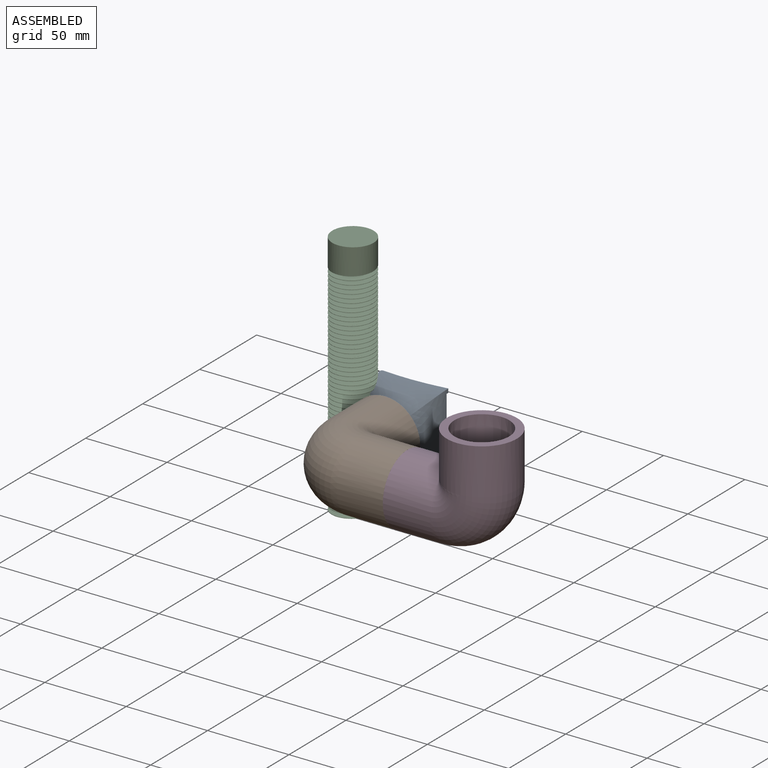
[diagram: assembled view]
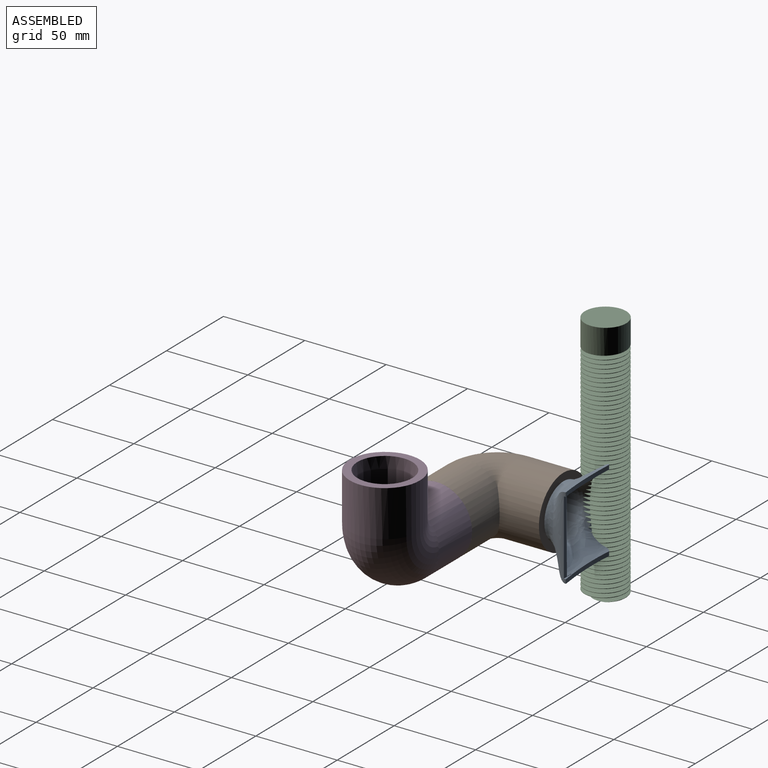
[diagram: assembled view, second angle]
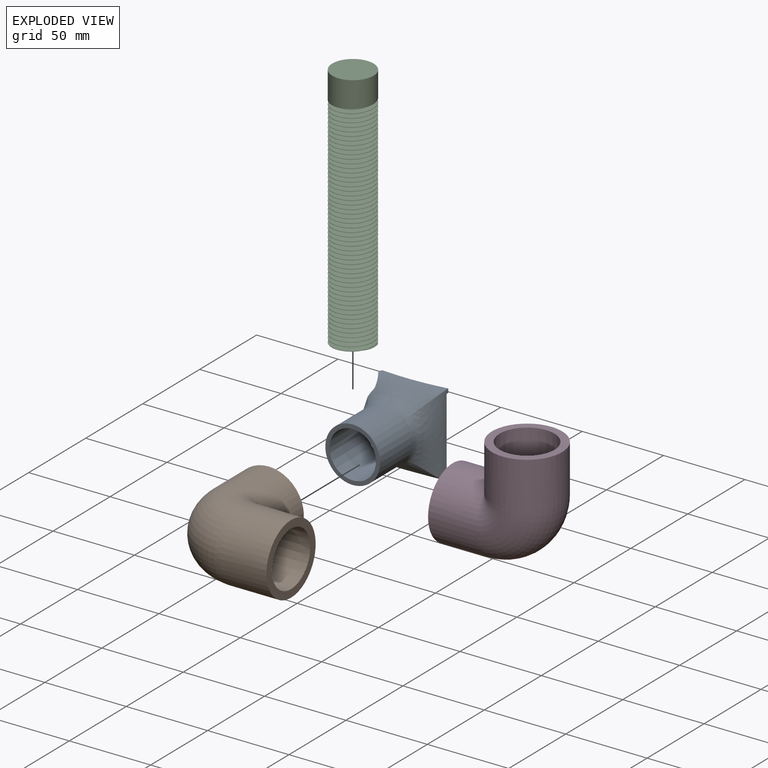
[diagram: exploded view]
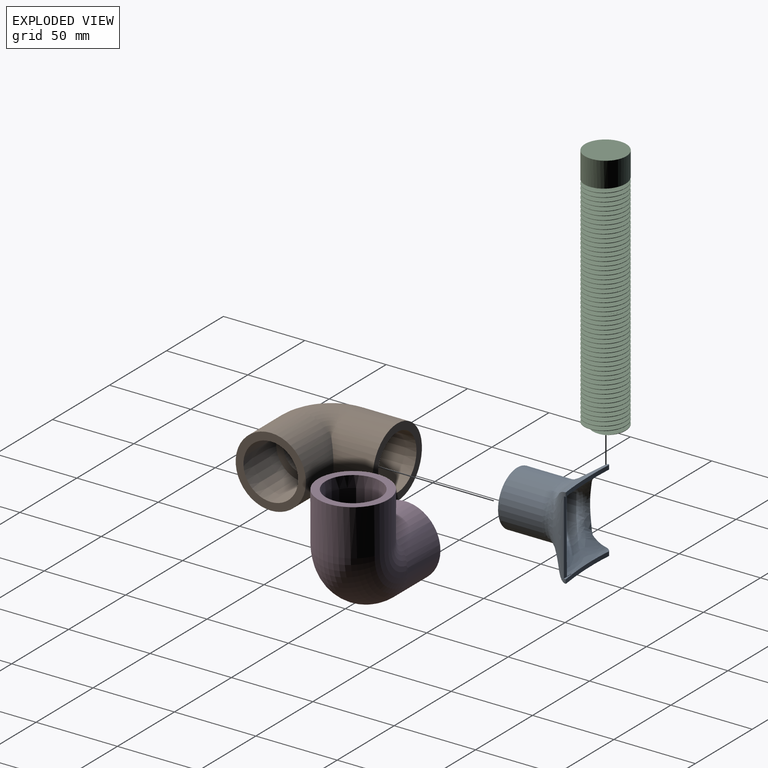
[diagram: exploded view, second angle]
ASSEMBLY  parts=4 mates=3
PART A: 29 faces, bbox 55.9x55.9x52.7 mm
  f0: bspline ~50.8x19.05mm, area 804.4mm2, adj f3,f4,f7,f8,f15,f24,f25,f28
  f1: offset ~55.88x24.13mm, area 611.2mm2, adj f3,f6,f9,f12,f19,f20,f22,f24
  f2: offset ~55.88x24.13mm, area 611.2mm2, adj f4,f6,f9,f10,f20,f21,f23,f24
  f3: cylinder r=198.48mm len=39.11mm, axis (0,-1,0), area 101.5mm2, adj f0,f1,f7,f22,f25,f27
  f4: cylinder r=198.48mm len=39.11mm, axis (0,-1,0), area 101.5mm2, adj f0,f2,f8,f23,f26,f28
  f5: bspline ~50.8x19.05mm, area 125.2mm2, adj f7,f8,f13,f20
  f6: offset ~55.88x24.13mm, area 198.2mm2, adj f1,f2,f11,f20
  f7: bspline ~50.8x19.05mm, area 723.3mm2, adj f0,f3,f5,f16,f19,f20,f22
  f8: bspline ~50.8x19.05mm, area 723.3mm2, adj f0,f4,f5,f14,f20,f21,f23
  f9: offset ~55.88x24.13mm, area 667.6mm2, adj f1,f2,f17,f24
  f10: extruded ~28.58x20.21mm, area 641.3mm2, adj f2,f11,f17,f18
  f11: extruded ~28.58x20.21mm, area 641.3mm2, adj f6,f10,f12,f18
  f12: extruded ~28.58x20.21mm, area 641.3mm2, adj f1,f11,f17,f18
  f13: extruded ~28.58x23.8mm, area 755.2mm2, adj f5,f14,f16,f18
  f14: extruded ~28.58x23.8mm, area 755.2mm2, adj f8,f13,f15,f18
  f15: extruded ~28.58x23.8mm, area 755.2mm2, adj f0,f14,f16,f18
  f16: extruded ~28.58x23.8mm, area 755.2mm2, adj f7,f13,f15,f18
  f17: extruded ~28.58x20.21mm, area 641.3mm2, adj f9,f10,f12,f18
  f18: plane 33.67x33.67mm, normal (0,0,1), area 248.3mm2, adj f10,f11,f12,f13,f14,f15,f16,f17
  f19: cylinder r=12.7mm len=8.93mm, axis (0,-1,0), area 23.8mm2, adj f1,f7,f20,f22
  f20: plane 42.68x9.9mm, normal (0.79,0,-0.62), area 101.1mm2, adj f1,f2,f5,f6,f7,f8,f19,f21
  f21: cylinder r=12.7mm len=8.93mm, axis (0,-1,0), area 23.8mm2, adj f2,f8,f20,f23
  f22: cylinder r=1.59mm len=3.85mm, axis (0,1,0), area 10mm2, adj f1,f3,f7,f19
  f23: cylinder r=1.59mm len=3.85mm, axis (0,1,0), area 10mm2, adj f2,f4,f8,f21
  f24: plane 46.32x6.85mm, normal (0,0,-1), area 120.9mm2, adj f0,f1,f2,f9,f25,f26,f27,f28
  f25: plane 6.42x1.34mm, normal (0,1,0), area 5.6mm2, adj f0,f3,f24,f27
  f26: plane 0.59x0.26mm, normal (-1,0,0), area 0.1mm2, adj f2,f4,f24,f28
  f27: plane 0.59x0.26mm, normal (-1,0,0), area 0.1mm2, adj f1,f3,f24,f25
  f28: plane 6.42x1.34mm, normal (0,-1,0), area 5.6mm2, adj f0,f4,f24,f26
PART B: 10 faces, bbox 67.3x43.2x67.3 mm
  f0: plane 43.18x43.18mm, normal (-1,0,0), area 574.8mm2, adj f1,f2
  f1: cone r=16.64mm half-angle=0.4deg, axis (-1,0,0), area 2990.9mm2, adj f0,f6
  f2: cylinder r=21.59mm len=43.18mm, axis (-1,0,0), area 3779.7mm2, adj f0,f4,f8
  f3: torus R=17.27mm, axis (0,1,0), area 2071.8mm2, adj f5,f6
  f4: torus R=17.27mm, axis (0,1,0), area 3805.2mm2, adj f2,f8
  f5: plane 33.27x33.27mm, normal (0,0,1), area 405.5mm2, adj f3,f9
  f6: plane 33.27x33.27mm, normal (-1,0,0), area 405.5mm2, adj f1,f3
  f7: plane 43.18x43.18mm, normal (0,0,1), area 574.8mm2, adj f8,f9
  f8: cylinder r=21.59mm len=43.18mm, axis (0,0,-1), area 3779.7mm2, adj f2,f4,f7
  f9: cone r=16.83mm half-angle=0.4deg, axis (0,0,1), area 2990.9mm2, adj f5,f7
PART C: 60 faces, bbox 32.5x161x36.4 mm
  f0: cylinder r=12.7mm len=25.4mm, axis (0,1,0), area 1254.9mm2, adj f1,f56,f57,f58
  f1: cylinder r=12.7mm len=25.4mm, axis (0,1,0), area 18.5mm2, adj f0,f2,f58,f59
  f2: cylinder r=12.7mm len=25.4mm, axis (0,1,0), area 18.4mm2, adj f1,f3,f58,f59
  f3: cylinder r=12.7mm len=25.4mm, axis (0,1,0), area 18.3mm2, adj f2,f4,f58,f59
  f4: cylinder r=12.7mm len=25.4mm, axis (0,1,0), area 18.4mm2, adj f3,f5,f58,f59
  f5: cylinder r=12.7mm len=25.4mm, axis (0,1,0), area 18.5mm2, adj f4,f6,f58,f59
  f6: cylinder r=12.7mm len=25.4mm, axis (0,1,0), area 18.5mm2, adj f5,f7,f58,f59
  f7: cylinder r=12.7mm len=25.4mm, axis (0,1,0), area 18.5mm2, adj f6,f8,f58,f59
  f8: cylinder r=12.7mm len=25.4mm, axis (0,1,0), area 18.4mm2, adj f7,f9,f58,f59
  f9: cylinder r=12.7mm len=25.4mm, axis (0,1,0), area 18.4mm2, adj f8,f10,f58,f59
  f10: cylinder r=12.7mm len=25.4mm, axis (0,1,0), area 18.4mm2, adj f9,f11,f58,f59
  f11: cylinder r=12.7mm len=25.4mm, axis (0,1,0), area 18.4mm2, adj f10,f12,f58,f59
  f12: cylinder r=12.7mm len=25.4mm, axis (0,1,0), area 18.3mm2, adj f11,f13,f58,f59
  f13: cylinder r=12.7mm len=25.4mm, axis (0,1,0), area 18.4mm2, adj f12,f14,f58,f59
  f14: cylinder r=12.7mm len=25.4mm, axis (0,1,0), area 18.5mm2, adj f13,f15,f58,f59
  f15: cylinder r=12.7mm len=25.4mm, axis (0,1,0), area 18.5mm2, adj f14,f16,f58,f59
  f16: cylinder r=12.7mm len=25.4mm, axis (0,1,0), area 18.4mm2, adj f15,f17,f58,f59
  f17: cylinder r=12.7mm len=25.4mm, axis (0,1,0), area 18.4mm2, adj f16,f18,f58,f59
  f18: cylinder r=12.7mm len=25.4mm, axis (0,1,0), area 18.4mm2, adj f17,f19,f58,f59
  f19: cylinder r=12.7mm len=25.4mm, axis (0,1,0), area 18.4mm2, adj f18,f20,f58,f59
  f20: cylinder r=12.7mm len=25.4mm, axis (0,1,0), area 18.4mm2, adj f19,f21,f58,f59
  f21: cylinder r=12.7mm len=25.4mm, axis (0,1,0), area 18.4mm2, adj f20,f22,f58,f59
  f22: cylinder r=12.7mm len=25.4mm, axis (0,1,0), area 18.5mm2, adj f21,f23,f58,f59
  f23: cylinder r=12.7mm len=25.4mm, axis (0,1,0), area 18.5mm2, adj f22,f24,f58,f59
  f24: cylinder r=12.7mm len=25.4mm, axis (0,1,0), area 18.5mm2, adj f23,f25,f58,f59
  f25: cylinder r=12.7mm len=25.4mm, axis (0,1,0), area 18.3mm2, adj f24,f26,f58,f59
  f26: cylinder r=12.7mm len=25.4mm, axis (0,1,0), area 18.4mm2, adj f25,f27,f58,f59
  f27: cylinder r=12.7mm len=25.4mm, axis (0,1,0), area 18.4mm2, adj f26,f28,f58,f59
  f28: cylinder r=12.7mm len=25.4mm, axis (0,1,0), area 18.4mm2, adj f27,f29,f58,f59
  f29: cylinder r=12.7mm len=25.4mm, axis (0,1,0), area 18.4mm2, adj f28,f30,f58,f59
  f30: cylinder r=12.7mm len=25.4mm, axis (0,1,0), area 18.4mm2, adj f29,f31,f58,f59
  f31: cylinder r=12.7mm len=25.4mm, axis (0,1,0), area 18.5mm2, adj f30,f32,f58,f59
  f32: cylinder r=12.7mm len=25.4mm, axis (0,1,0), area 18.5mm2, adj f31,f33,f58,f59
  f33: cylinder r=12.7mm len=25.4mm, axis (0,1,0), area 18.4mm2, adj f32,f34,f58,f59
  f34: cylinder r=12.7mm len=25.4mm, axis (0,1,0), area 18.3mm2, adj f33,f35,f58,f59
  f35: cylinder r=12.7mm len=25.4mm, axis (0,1,0), area 18.4mm2, adj f34,f36,f58,f59
  f36: cylinder r=12.7mm len=25.4mm, axis (0,1,0), area 18.5mm2, adj f35,f37,f58,f59
  f37: cylinder r=12.7mm len=25.4mm, axis (0,1,0), area 18.5mm2, adj f36,f38,f58,f59
  f38: cylinder r=12.7mm len=25.4mm, axis (0,1,0), area 18.4mm2, adj f37,f39,f58,f59
  f39: cylinder r=12.7mm len=25.4mm, axis (0,1,0), area 18.5mm2, adj f38,f40,f58,f59
  f40: cylinder r=12.7mm len=25.4mm, axis (0,1,0), area 18.5mm2, adj f39,f41,f58,f59
  f41: cylinder r=12.7mm len=25.4mm, axis (0,1,0), area 18.4mm2, adj f40,f42,f58,f59
  f42: cylinder r=12.7mm len=25.4mm, axis (0,1,0), area 18.3mm2, adj f41,f43,f58,f59
  f43: cylinder r=12.7mm len=25.4mm, axis (0,1,0), area 18.3mm2, adj f42,f44,f58,f59
  f44: cylinder r=12.7mm len=25.4mm, axis (0,1,0), area 18.5mm2, adj f43,f45,f58,f59
  f45: cylinder r=12.7mm len=25.4mm, axis (0,1,0), area 18.5mm2, adj f44,f46,f58,f59
  f46: cylinder r=12.7mm len=25.4mm, axis (0,1,0), area 18.5mm2, adj f45,f47,f58,f59
  f47: cylinder r=12.7mm len=25.4mm, axis (0,1,0), area 18.4mm2, adj f46,f48,f58,f59
  f48: cylinder r=12.7mm len=25.4mm, axis (0,1,0), area 18.5mm2, adj f47,f49,f58,f59
  f49: cylinder r=12.7mm len=25.4mm, axis (0,1,0), area 18.4mm2, adj f48,f50,f58,f59
  f50: cylinder r=12.7mm len=25.4mm, axis (0,1,0), area 18.4mm2, adj f49,f51,f58,f59
  f51: cylinder r=12.7mm len=25.4mm, axis (0,1,0), area 18.3mm2, adj f50,f52,f58,f59
  f52: cylinder r=12.7mm len=25.4mm, axis (0,1,0), area 18.4mm2, adj f51,f53,f58,f59
  f53: cylinder r=12.7mm len=25.4mm, axis (0,1,0), area 18.5mm2, adj f52,f54,f58,f59
  f54: cylinder r=12.7mm len=22.98mm, axis (0,1,0), area 6.6mm2, adj f53,f55,f58,f59
  f55: plane 25.2x24.46mm, normal (0,-1,0), area 236.5mm2, adj f54,f58,f59
  f56: plane 25.4x25.4mm, normal (0,1,0), area 506.7mm2, adj f0
  f57: plane 10.16x2.31mm, normal (0,0,-1), area 11.7mm2, adj f0,f58,f59
  f58: bspline ~139.08x29.33mm, area 26528.5mm2, adj f0,f1,f2,f3,f4,f5,f6,f7
  f59: bspline ~138.39x29.33mm, area 26368.1mm2, adj f1,f2,f3,f4,f5,f6,f7,f8
PART D: same geometry as B
PLACE A rot(axis=(0,-0.71,0.71),180deg) t=(-235.67,11.01,45.86)mm
PLACE B rot(axis=(0,0.71,0.71),180deg) t=(-210.27,-53.89,20.46)mm
PLACE C rot(axis=(1,0,0),90deg) t=(-235.67,-0.1,120.79)mm
PLACE D t=(-118.83,-53.89,20.46)mm
MATE fastened B.f1 <-> D.f1  axis (1,0,0) through (-164.55,-53.89,20.46)mm
MATE fastened C.f0 <-> A.f19  axis (0,0,1) through (-235.67,-0.1,44.59)mm
MATE fastened A.f18 <-> B.f8  axis (0,-1,0) through (-210.27,-36.61,20.46)mm
